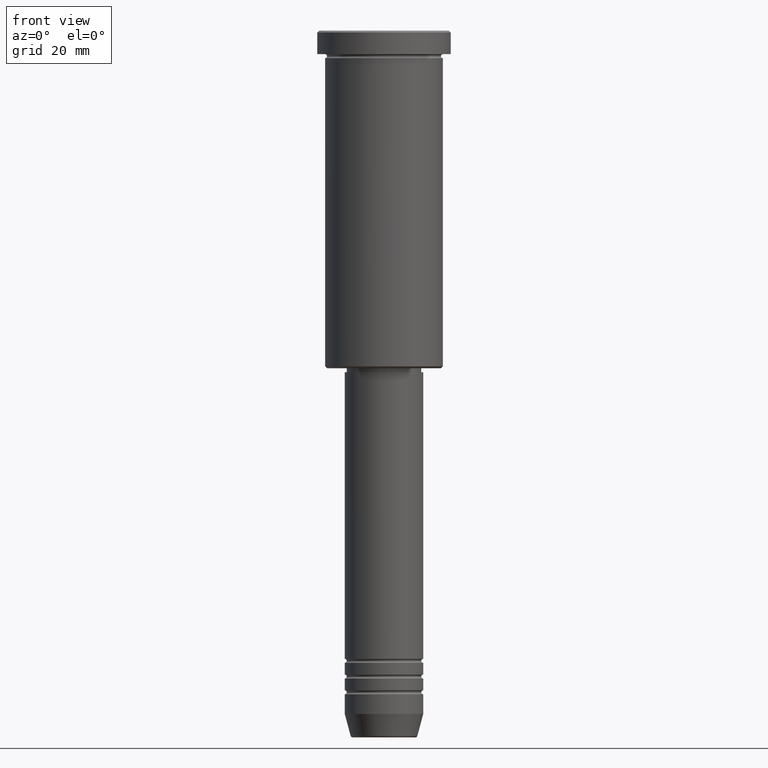
[diagram: clean part render]
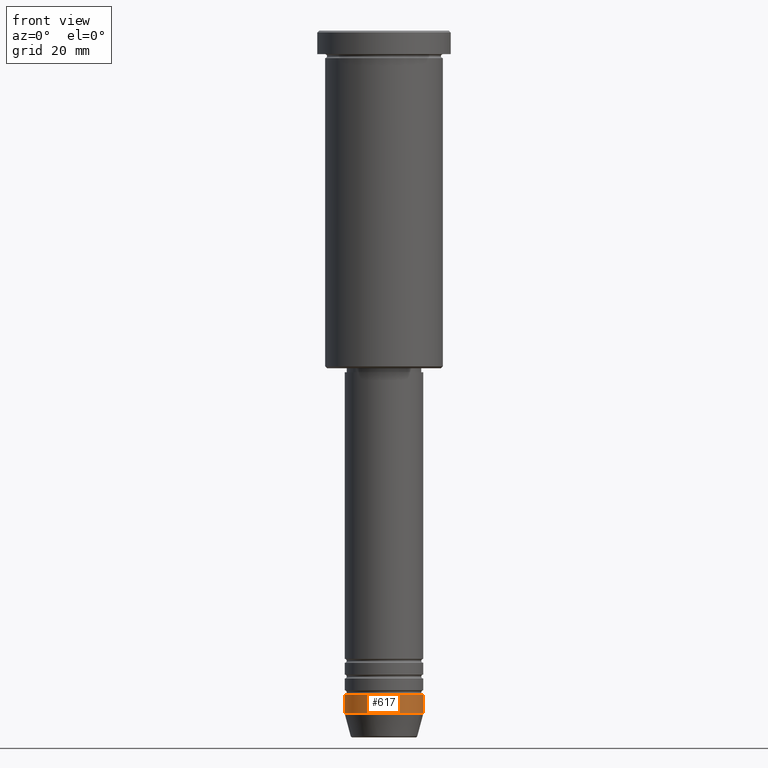
[diagram: same view with one face highlighted and labeled with its STEP entity id]
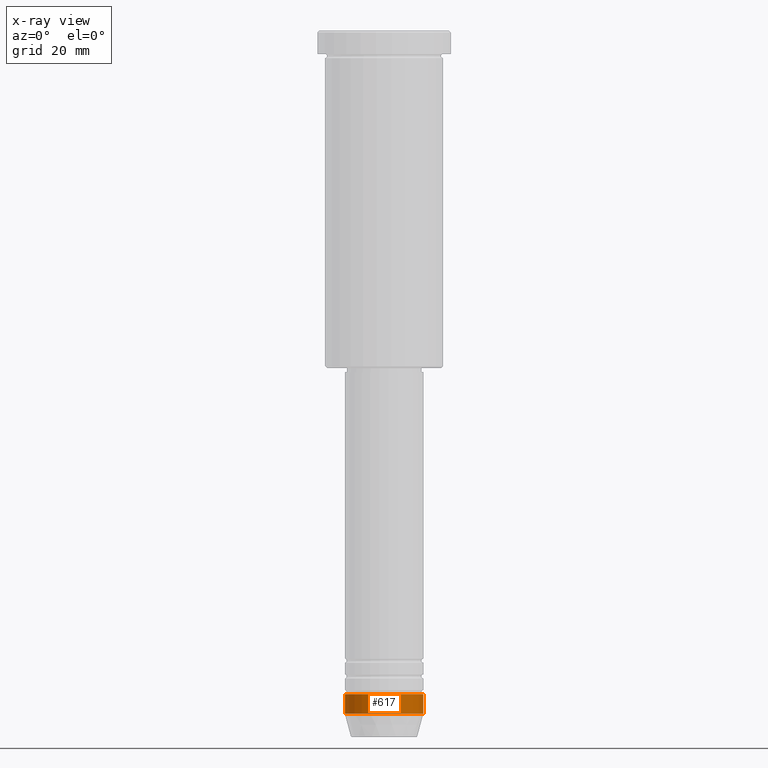
[diagram: x-ray of the same camera — body ghosted, the highlighted face saturated]
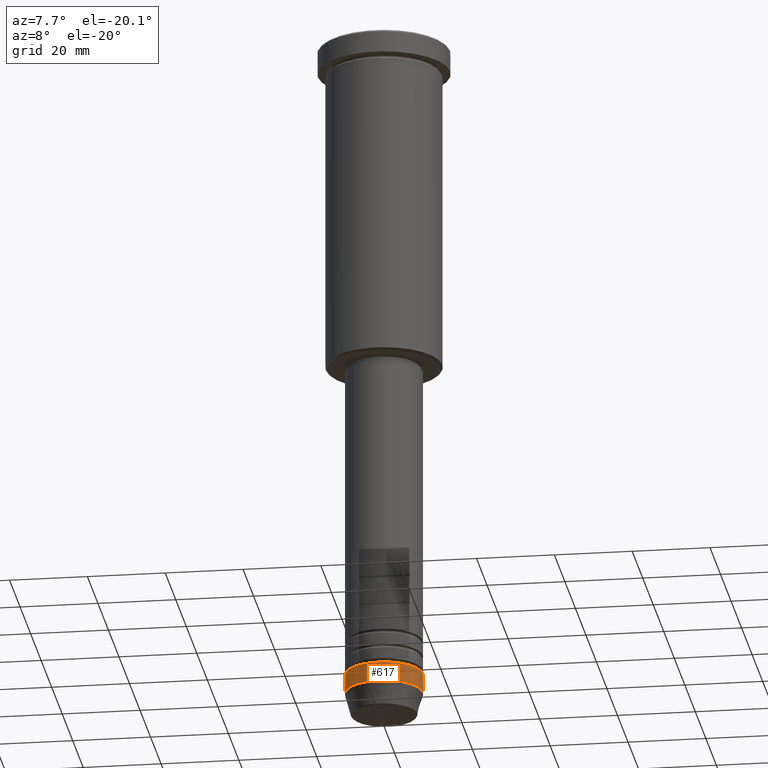
[diagram: same view with one face highlighted and labeled with its STEP entity id]
A machine part, front view. The second image highlights one B-rep face of the part: STEP entity #617.
The next image is the same camera in x-ray: the body ghosted, the highlighted face saturated — about 0% of this face is hidden behind the body in this view.
A second angle (auxiliary view) of the same face is appended — the face is thin or edge-on in the first view.
In plain terms, the highlighted cylindrical surface (partial cylindrical patch) has radius 10 mm, axis along (-0, -0, 1).
Its self-contained STEP definition (entity closure, byte-faithful):
#6 = DIRECTION ( 'NONE',  ( -0.000000000000000000, -0.000000000000000000, 1.000000000000000000 ) ) ;
#48 = EDGE_CURVE ( 'NONE', #217, #309, #1178, .T. ) ;
#116 = AXIS2_PLACEMENT_3D ( 'NONE', #535, #151, #516 ) ;
#151 = DIRECTION ( 'NONE',  ( -0.000000000000000000, -0.000000000000000000, 1.000000000000000000 ) ) ;
#170 = CARTESIAN_POINT ( 'NONE',  ( -10.00000000000000178, 1.224646799147353454E-15, -174.0000000000000284 ) ) ;
#217 = VERTEX_POINT ( 'NONE', #170 ) ;
#259 = EDGE_CURVE ( 'NONE', #491, #1037, #975, .T. ) ;
#278 = EDGE_CURVE ( 'NONE', #309, #1037, #546, .T. ) ;
#309 = VERTEX_POINT ( 'NONE', #364 ) ;
#331 = ORIENTED_EDGE ( 'NONE', *, *, #278, .T. ) ;
#359 = VECTOR ( 'NONE', #1019, 1000.000000000000000 ) ;
#364 = CARTESIAN_POINT ( 'NONE',  ( 10.00000000000000178, 0.000000000000000000, -174.0000000000000284 ) ) ;
#429 = CYLINDRICAL_SURFACE ( 'NONE', #116, 10.00000000000000178 ) ;
#468 = DIRECTION ( 'NONE',  ( -0.000000000000000000, -0.000000000000000000, 1.000000000000000000 ) ) ;
#482 = VECTOR ( 'NONE', #530, 1000.000000000000000 ) ;
#491 = VERTEX_POINT ( 'NONE', #962 ) ;
#516 = DIRECTION ( 'NONE',  ( 1.000000000000000000, 0.000000000000000000, 0.000000000000000000 ) ) ;
#530 = DIRECTION ( 'NONE',  ( -0.000000000000000000, -0.000000000000000000, 1.000000000000000000 ) ) ;
#535 = CARTESIAN_POINT ( 'NONE',  ( 0.000000000000000000, 0.000000000000000000, 0.000000000000000000 ) ) ;
#541 = ORIENTED_EDGE ( 'NONE', *, *, #48, .T. ) ;
#546 = LINE ( 'NONE', #830, #359 ) ;
#562 = CARTESIAN_POINT ( 'NONE',  ( 0.000000000000000000, 0.000000000000000000, -174.0000000000000284 ) ) ;
#611 = CARTESIAN_POINT ( 'NONE',  ( -10.00000000000000178, 1.224646799147353454E-15, 0.000000000000000000 ) ) ;
#617 = ADVANCED_FACE ( 'NONE', ( #782 ), #429, .T. ) ;
#636 = EDGE_CURVE ( 'NONE', #217, #491, #895, .T. ) ;
#643 = DIRECTION ( 'NONE',  ( 1.000000000000000000, 0.000000000000000000, 0.000000000000000000 ) ) ;
#778 = AXIS2_PLACEMENT_3D ( 'NONE', #1183, #468, #838 ) ;
#782 = FACE_OUTER_BOUND ( 'NONE', #1125, .T. ) ;
#830 = CARTESIAN_POINT ( 'NONE',  ( 10.00000000000000178, 0.000000000000000000, 0.000000000000000000 ) ) ;
#838 = DIRECTION ( 'NONE',  ( 1.000000000000000000, 0.000000000000000000, 0.000000000000000000 ) ) ;
#895 = LINE ( 'NONE', #611, #482 ) ;
#952 = CARTESIAN_POINT ( 'NONE',  ( 10.00000000000000000, 0.000000000000000000, -169.0000000000000000 ) ) ;
#955 = AXIS2_PLACEMENT_3D ( 'NONE', #562, #6, #643 ) ;
#962 = CARTESIAN_POINT ( 'NONE',  ( -10.00000000000000000, 1.224646799147353256E-15, -169.0000000000000000 ) ) ;
#975 = CIRCLE ( 'NONE', #778, 10.00000000000000000 ) ;
#1019 = DIRECTION ( 'NONE',  ( -0.000000000000000000, -0.000000000000000000, 1.000000000000000000 ) ) ;
#1037 = VERTEX_POINT ( 'NONE', #952 ) ;
#1092 = ORIENTED_EDGE ( 'NONE', *, *, #259, .F. ) ;
#1115 = ORIENTED_EDGE ( 'NONE', *, *, #636, .F. ) ;
#1125 = EDGE_LOOP ( 'NONE', ( #1115, #541, #331, #1092 ) ) ;
#1178 = CIRCLE ( 'NONE', #955, 10.00000000000000178 ) ;
#1183 = CARTESIAN_POINT ( 'NONE',  ( 0.000000000000000000, 0.000000000000000000, -169.0000000000000000 ) ) ;